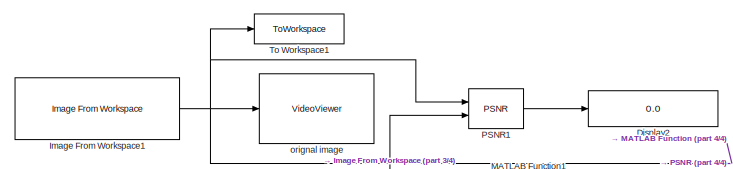
[diagram: root canvas - part 1/4, top center region]
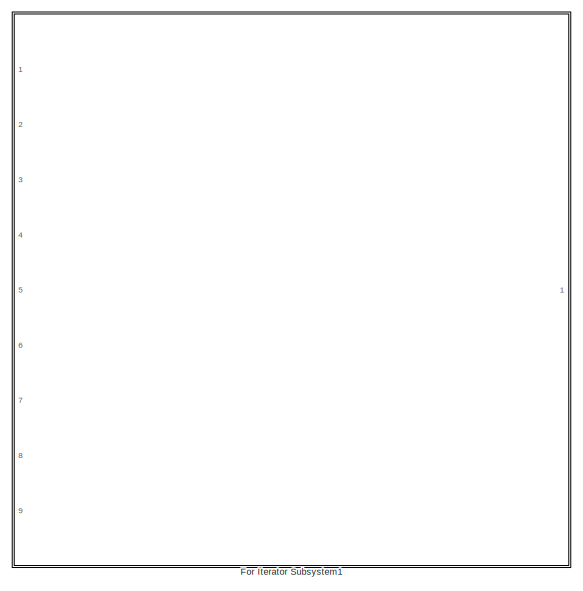
[diagram: root canvas - part 2/4, middle left region]
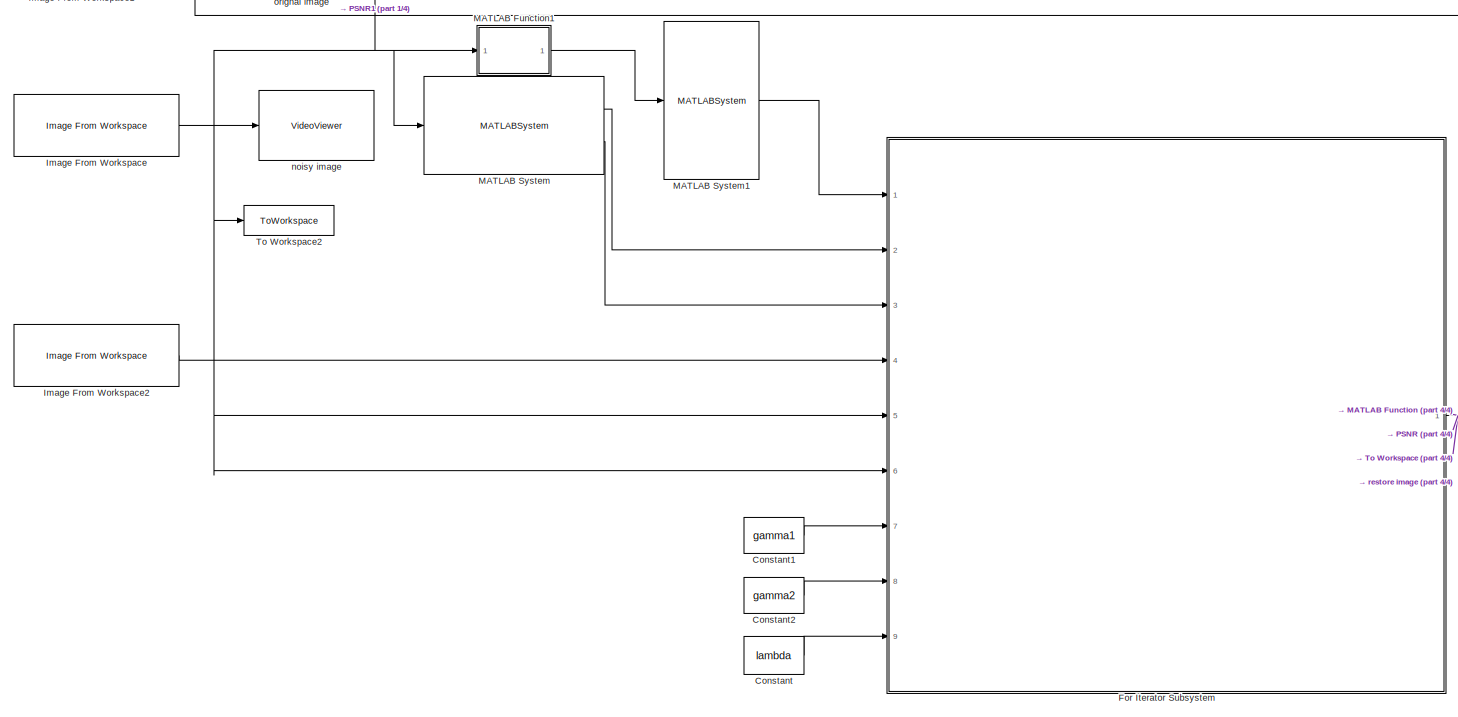
[diagram: root canvas - part 3/4, center side, full height]
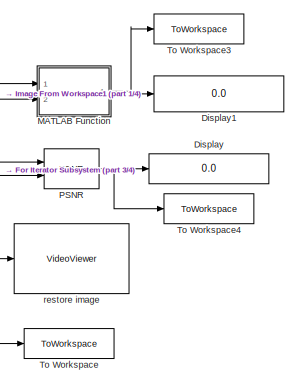
[diagram: root canvas - part 4/4, bottom right region]
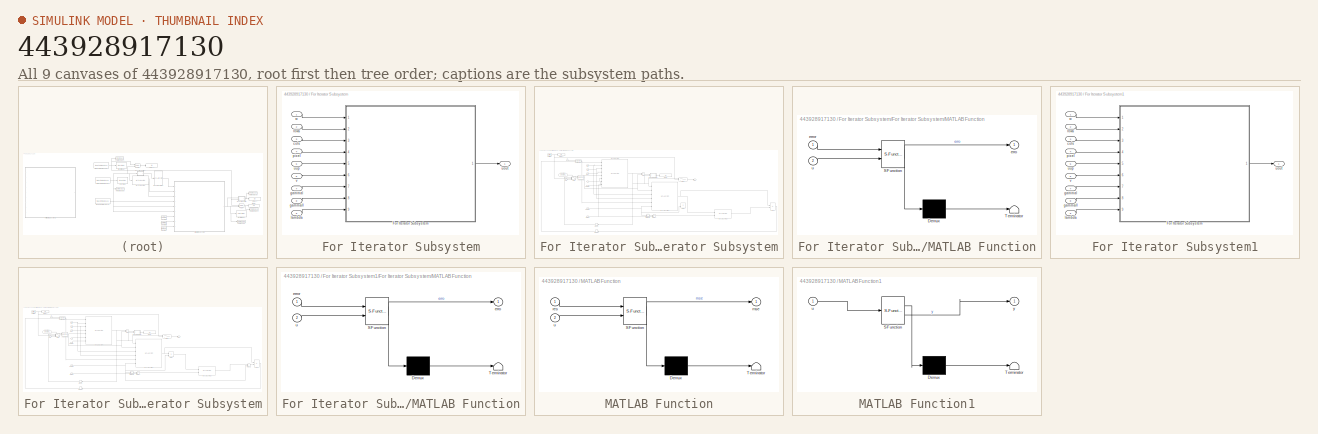
[diagram: thumbnail index - all 9 canvases of the model, root first then tree order]
MODEL slx_443928917130
KIND model
CONFIG AbsTol = auto
CONFIG EnableMultiTasking = off
CONFIG FixedStep = auto
CONFIG MaxStep = auto
CONFIG MinStep = auto
CONFIG RelTol = 1e-3
CONFIG SampleTimeConstraint = Unconstrained
CONFIG SolverName = VariableStepAuto
CONFIG StartTime = 0.0
CONFIG StopTime = 0
BLOCK [Constant] Constant
  Value = lambda
BLOCK [Constant] Constant1
  Value = gamma1
BLOCK [Constant] Constant2
  Value = gamma2
BLOCK [Display] Display
  Decimation = 1
  Format = long
  Ports = [1]
BLOCK [Display] Display1
  Decimation = 1
  Format = long
  Ports = [1]
BLOCK [Display] Display2
  Decimation = 1
  Format = long
  Ports = [1]
BLOCK [SubSystem] For Iterator Subsystem
  Ports = [9, 1]
  RequestExecContextInheritance = off
  TreatAsAtomicUnit = on
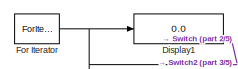
[diagram: For Iterator Subsystem/For Iterator Subsystem - part 1/5, top left region]
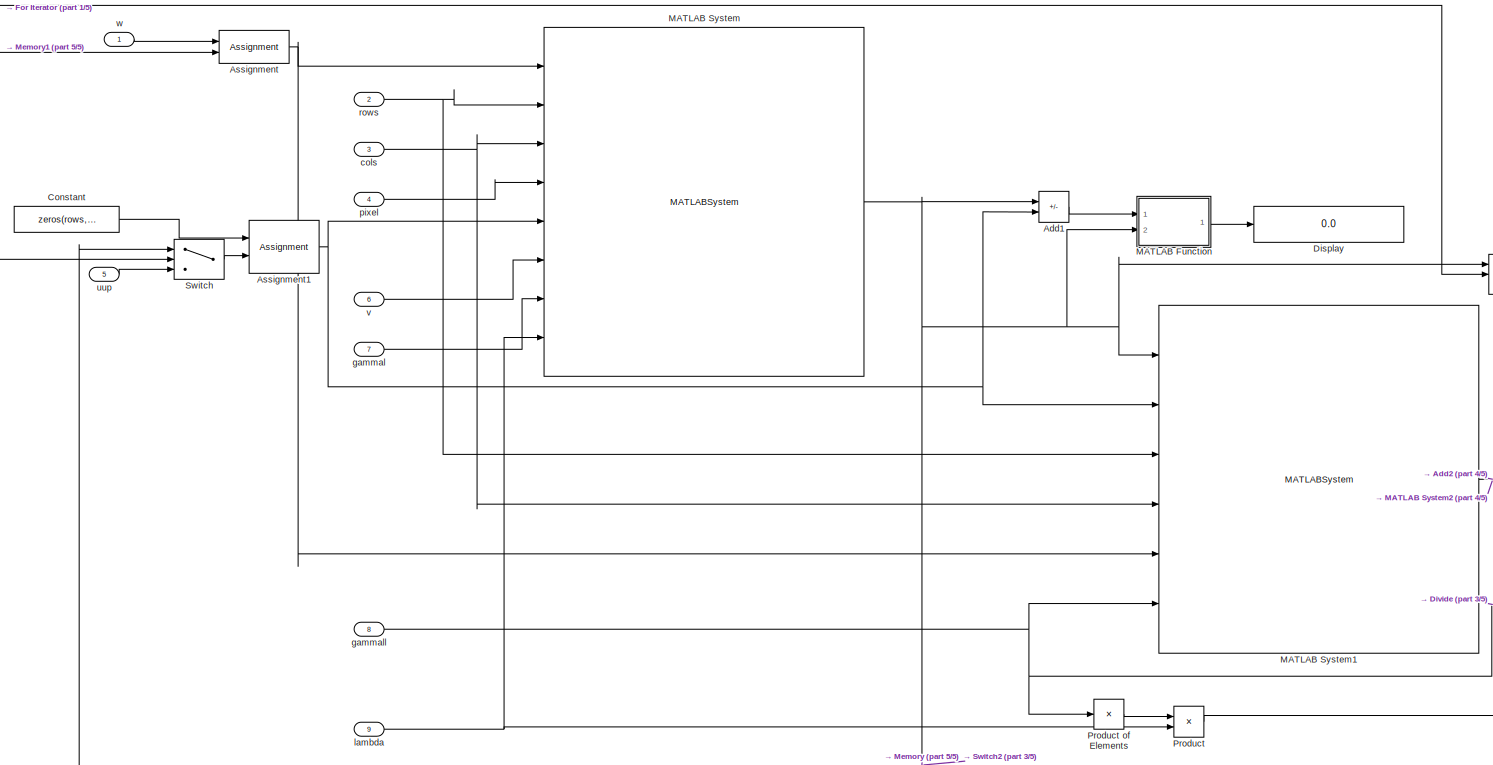
[diagram: For Iterator Subsystem/For Iterator Subsystem - part 2/5, left side, full height]
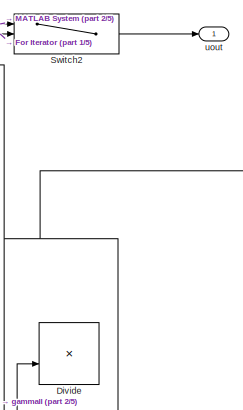
[diagram: For Iterator Subsystem/For Iterator Subsystem - part 3/5, central region]
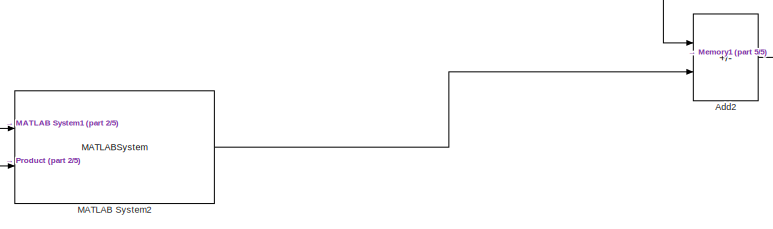
[diagram: For Iterator Subsystem/For Iterator Subsystem - part 4/5, bottom right region]
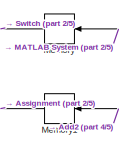
[diagram: For Iterator Subsystem/For Iterator Subsystem - part 5/5, bottom left region]
BLOCK [SubSystem] For Iterator Subsystem/For Iterator Subsystem
  Ports = [9, 1]
  RequestExecContextInheritance = off
  TreatAsAtomicUnit = on
BLOCK [Sum] For Iterator Subsystem/For Iterator Subsystem/Add1
  IconShape = rectangular
  Inputs = +-
  Ports = [2, 1]
BLOCK [Sum] For Iterator Subsystem/For Iterator Subsystem/Add2
  IconShape = rectangular
  Inputs = +-
  Ports = [2, 1]
BLOCK [Assignment] For Iterator Subsystem/For Iterator Subsystem/Assignment
  DiagnosticForDimensions = Warning
  IndexOptions = Assign all,Assign all,Assign all
  Indices = 1,1,1
  NumberOfDimensions = 3
  OutputSizes = 1,1,1
  Ports = [2, 1]
BLOCK [Assignment] For Iterator Subsystem/For Iterator Subsystem/Assignment1
  DiagnosticForDimensions = Warning
  IndexOptions = Assign all,Assign all
  Indices = 1,1
  NumberOfDimensions = 2
  OutputSizes = 1,1
  Ports = [2, 1]
BLOCK [Constant] For Iterator Subsystem/For Iterator Subsystem/Constant
  Value = zeros(rows,cols)
BLOCK [Display] For Iterator Subsystem/For Iterator Subsystem/Display
  Decimation = 1
  Ports = [1]
BLOCK [Display] For Iterator Subsystem/For Iterator Subsystem/Display1
  Decimation = 1
  Ports = [1]
BLOCK [Product] For Iterator Subsystem/For Iterator Subsystem/Divide
  Commented = on
  Inputs = */
  Ports = [2, 1]
BLOCK [ForIterator] For Iterator Subsystem/For Iterator Subsystem/For Iterator
  IndexMode = Zero-based
  IterationLimit = maxIter
  IterationVariableDataType = double
  Ports = [0, 1]
BLOCK [SubSystem] For Iterator Subsystem/For Iterator Subsystem/MATLAB Function
  ErrorFcn = Stateflow.Translate.translate
  PermitHierarchicalResolution = ExplicitOnly
  Ports = [2, 1]
  RequestExecContextInheritance = off
  SFBlockType = MATLAB Function
  TreatAsAtomicUnit = on
BLOCK [Demux] For Iterator Subsystem/For Iterator Subsystem/MATLAB Function/ Demux 
  Outputs = 1
  Ports = [1, 1]
BLOCK [S-Function] For Iterator Subsystem/For Iterator Subsystem/MATLAB Function/ SFunction 
  EnableBusSupport = on
  FunctionName = sf_sfun
  PortCounts = [2 2]
  Ports = [2, 2]
  SFcnIsStateOwnerBlock = off
  SFunctionDeploymentMode = off
  Tag = Stateflow S-Function 3
BLOCK [Terminator] For Iterator Subsystem/For Iterator Subsystem/MATLAB Function/ Terminator 
BLOCK [Outport] For Iterator Subsystem/For Iterator Subsystem/MATLAB Function/erro
BLOCK [Inport] For Iterator Subsystem/For Iterator Subsystem/MATLAB Function/error
BLOCK [Inport] For Iterator Subsystem/For Iterator Subsystem/MATLAB Function/u
  Port = 2
BLOCK [MATLABSystem] For Iterator Subsystem/For Iterator Subsystem/MATLAB System
  MaskDisplay = disp('updateuSystem');\nport_label('input',1,'w');\nport_label('input',2,'rows');\nport_label('input',3,'cols');\nport_label('input',4,'pixel');\nport_label('input',5,'uup');\nport_label('input',6,'v');\nport_label('input',7,'gamma1');\nport_label('input',8,'lambda');\nport_label('output',1,'u');
  MaskType = updateuSystem
  Ports = [8, 1]
  SimulateUsing = Code generation
  System = updateuSystem
BLOCK [MATLABSystem] For Iterator Subsystem/For Iterator Subsystem/MATLAB System1
  MaskDisplay = disp('updatewSystem');\nport_label('input',1,'u');\nport_label('input',2,'upre');\nport_label('input',3,'rows');\nport_label('input',4,'cols');\nport_label('input',5,'w');\nport_label('input',6,'gamma2');\nport_label('output',1,'w_tilde');
  MaskType = updatewSystem
  Ports = [6, 1]
  SimulateUsing = Code generation
  System = updatewSystem
BLOCK [MATLABSystem] For Iterator Subsystem/For Iterator Subsystem/MATLAB System2
  MaskDisplay = disp('SoftThrSystem');\nport_label('input',1,'x');\nport_label('input',2,'lambda');\nport_label('output',1,'y');
  MaskType = SoftThrSystem
  Ports = [2, 1]
  SimulateUsing = Code generation
  System = SoftThrSystem
BLOCK [Memory] For Iterator Subsystem/For Iterator Subsystem/Memory
  InheritSampleTime = on
BLOCK [Memory] For Iterator Subsystem/For Iterator Subsystem/Memory1
  InheritSampleTime = on
BLOCK [Product] For Iterator Subsystem/For Iterator Subsystem/Product
  Ports = [2, 1]
BLOCK [Product] For Iterator Subsystem/For Iterator Subsystem/Product of Elements
  Inputs = /
  Ports = [1, 1]
BLOCK [Switch] For Iterator Subsystem/For Iterator Subsystem/Switch
  Criteria = u2 > Threshold
  InputSameDT = off
  SaturateOnIntegerOverflow = off
BLOCK [Switch] For Iterator Subsystem/For Iterator Subsystem/Switch2
  InputSameDT = off
  SaturateOnIntegerOverflow = off
  Threshold = maxIter-1
BLOCK [Inport] For Iterator Subsystem/For Iterator Subsystem/cols
  Port = 3
BLOCK [Inport] For Iterator Subsystem/For Iterator Subsystem/gammal
  Port = 7
BLOCK [Inport] For Iterator Subsystem/For Iterator Subsystem/gammall
  Port = 8
BLOCK [Inport] For Iterator Subsystem/For Iterator Subsystem/lambda
  Port = 9
BLOCK [Inport] For Iterator Subsystem/For Iterator Subsystem/pixel
  Port = 4
BLOCK [Inport] For Iterator Subsystem/For Iterator Subsystem/rows
  Port = 2
BLOCK [Outport] For Iterator Subsystem/For Iterator Subsystem/uout
BLOCK [Inport] For Iterator Subsystem/For Iterator Subsystem/uup
  Port = 5
BLOCK [Inport] For Iterator Subsystem/For Iterator Subsystem/v
  Port = 6
BLOCK [Inport] For Iterator Subsystem/For Iterator Subsystem/w
BLOCK [Inport] For Iterator Subsystem/cols
  Port = 3
BLOCK [Inport] For Iterator Subsystem/gammal
  Port = 7
BLOCK [Inport] For Iterator Subsystem/gammall
  Port = 8
BLOCK [Inport] For Iterator Subsystem/lambda
  Port = 9
BLOCK [Inport] For Iterator Subsystem/pixel
  Port = 4
BLOCK [Inport] For Iterator Subsystem/rows
  Port = 2
BLOCK [Outport] For Iterator Subsystem/uout
BLOCK [Inport] For Iterator Subsystem/uup
  Port = 5
BLOCK [Inport] For Iterator Subsystem/v
  Port = 6
BLOCK [Inport] For Iterator Subsystem/w
BLOCK [SubSystem] For Iterator Subsystem1
  Commented = on
  Ports = [9, 1]
  RequestExecContextInheritance = off
  TreatAsAtomicUnit = on
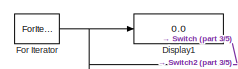
[diagram: For Iterator Subsystem1/For Iterator Subsystem - part 1/5, top left region]
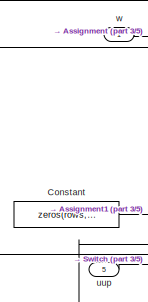
[diagram: For Iterator Subsystem1/For Iterator Subsystem - part 2/5, top left region]
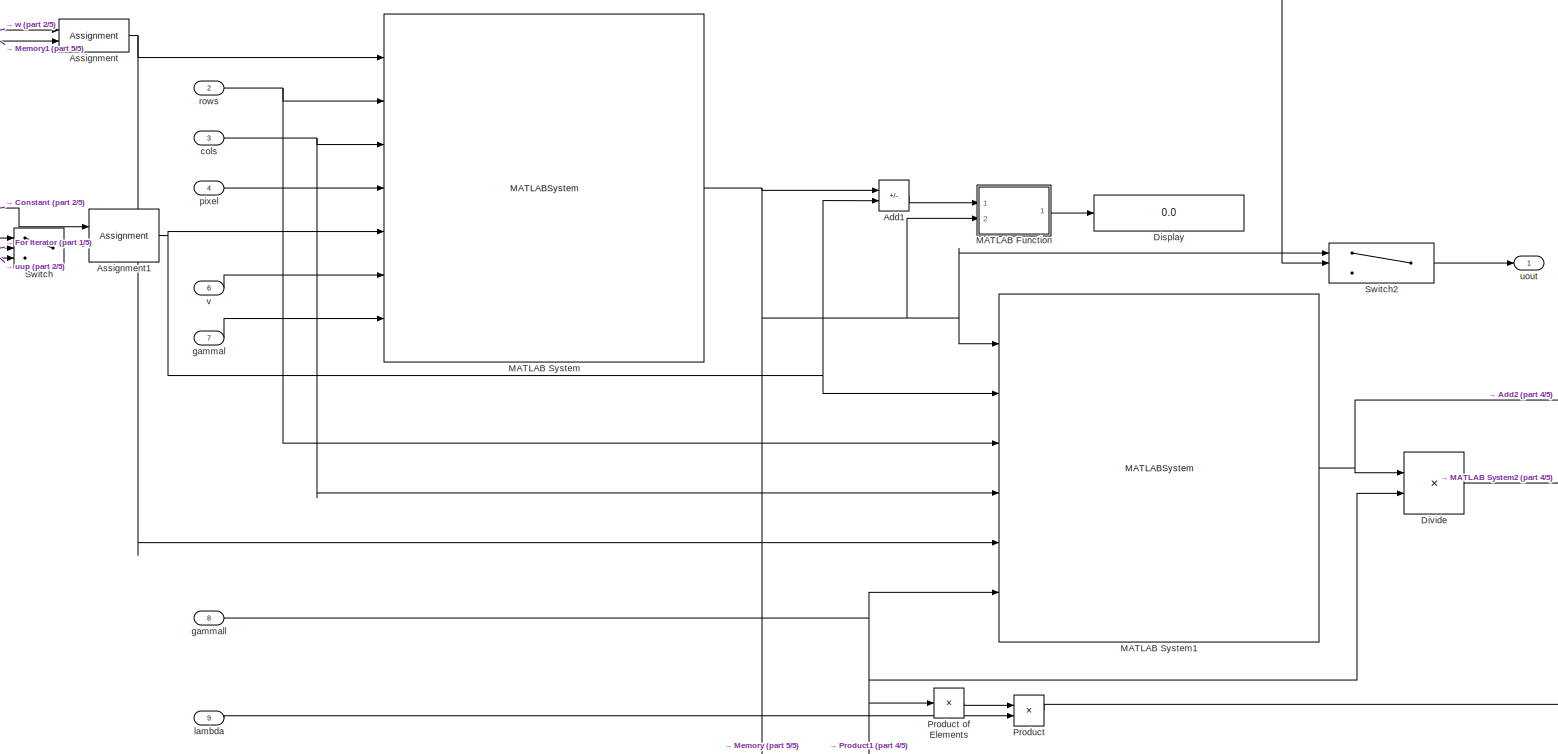
[diagram: For Iterator Subsystem1/For Iterator Subsystem - part 3/5, central region]
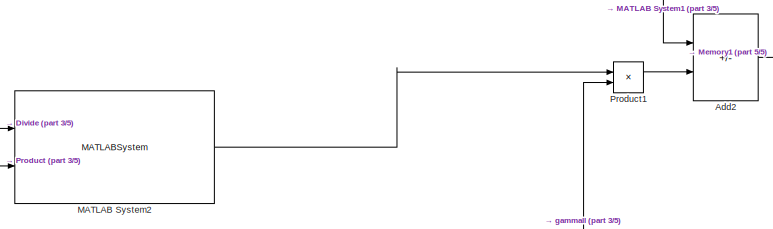
[diagram: For Iterator Subsystem1/For Iterator Subsystem - part 4/5, bottom right region]
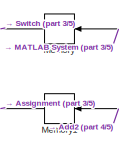
[diagram: For Iterator Subsystem1/For Iterator Subsystem - part 5/5, bottom left region]
BLOCK [SubSystem] For Iterator Subsystem1/For Iterator Subsystem
  Ports = [9, 1]
  RequestExecContextInheritance = off
  TreatAsAtomicUnit = on
BLOCK [Sum] For Iterator Subsystem1/For Iterator Subsystem/Add1
  IconShape = rectangular
  Inputs = +-
  Ports = [2, 1]
BLOCK [Sum] For Iterator Subsystem1/For Iterator Subsystem/Add2
  IconShape = rectangular
  Inputs = +-
  Ports = [2, 1]
BLOCK [Assignment] For Iterator Subsystem1/For Iterator Subsystem/Assignment
  DiagnosticForDimensions = Warning
  IndexOptions = Assign all,Assign all,Assign all
  Indices = 1,1,1
  NumberOfDimensions = 3
  OutputSizes = 1,1,1
  Ports = [2, 1]
BLOCK [Assignment] For Iterator Subsystem1/For Iterator Subsystem/Assignment1
  DiagnosticForDimensions = Warning
  IndexOptions = Assign all,Assign all
  Indices = 1,1
  NumberOfDimensions = 2
  OutputSizes = 1,1
  Ports = [2, 1]
BLOCK [Constant] For Iterator Subsystem1/For Iterator Subsystem/Constant
  Value = zeros(rows,cols)
BLOCK [Display] For Iterator Subsystem1/For Iterator Subsystem/Display
  Decimation = 1
  Ports = [1]
BLOCK [Display] For Iterator Subsystem1/For Iterator Subsystem/Display1
  Decimation = 1
  Ports = [1]
BLOCK [Product] For Iterator Subsystem1/For Iterator Subsystem/Divide
  Inputs = */
  Ports = [2, 1]
BLOCK [ForIterator] For Iterator Subsystem1/For Iterator Subsystem/For Iterator
  IndexMode = Zero-based
  IterationLimit = maxIter
  IterationVariableDataType = double
  Ports = [0, 1]
BLOCK [SubSystem] For Iterator Subsystem1/For Iterator Subsystem/MATLAB Function
  ErrorFcn = Stateflow.Translate.translate
  PermitHierarchicalResolution = ExplicitOnly
  Ports = [2, 1]
  RequestExecContextInheritance = off
  SFBlockType = MATLAB Function
  TreatAsAtomicUnit = on
BLOCK [Demux] For Iterator Subsystem1/For Iterator Subsystem/MATLAB Function/ Demux 
  Outputs = 1
  Ports = [1, 1]
BLOCK [S-Function] For Iterator Subsystem1/For Iterator Subsystem/MATLAB Function/ SFunction 
  EnableBusSupport = on
  FunctionName = sf_sfun
  PortCounts = [2 2]
  Ports = [2, 2]
  SFcnIsStateOwnerBlock = off
  SFunctionDeploymentMode = off
  Tag = Stateflow S-Function 2
BLOCK [Terminator] For Iterator Subsystem1/For Iterator Subsystem/MATLAB Function/ Terminator 
BLOCK [Outport] For Iterator Subsystem1/For Iterator Subsystem/MATLAB Function/erro
BLOCK [Inport] For Iterator Subsystem1/For Iterator Subsystem/MATLAB Function/error
BLOCK [Inport] For Iterator Subsystem1/For Iterator Subsystem/MATLAB Function/u
  Port = 2
BLOCK [MATLABSystem] For Iterator Subsystem1/For Iterator Subsystem/MATLAB System
  MaskDisplay = disp('updateuSystem');\nport_label('input',1,'w');\nport_label('input',2,'rows');\nport_label('input',3,'cols');\nport_label('input',4,'pixel');\nport_label('input',5,'uup');\nport_label('input',6,'v');\nport_label('input',7,'gamma1');\nport_label('output',1,'u');
  MaskType = updateuSystem
  Ports = [7, 1]
  SimulateUsing = Code generation
  System = updateuSystem
BLOCK [MATLABSystem] For Iterator Subsystem1/For Iterator Subsystem/MATLAB System1
  MaskDisplay = disp('updatewSystem');\nport_label('input',1,'u');\nport_label('input',2,'upre');\nport_label('input',3,'rows');\nport_label('input',4,'cols');\nport_label('input',5,'w');\nport_label('input',6,'gamma2');\nport_label('output',1,'w_tilde');
  MaskType = updatewSystem
  Ports = [6, 1]
  SimulateUsing = Code generation
  System = updatewSystem
BLOCK [MATLABSystem] For Iterator Subsystem1/For Iterator Subsystem/MATLAB System2
  MaskDisplay = disp('SoftThrSystem');\nport_label('input',1,'x');\nport_label('input',2,'lambda');\nport_label('output',1,'y');
  MaskType = SoftThrSystem
  Ports = [2, 1]
  SimulateUsing = Code generation
  System = SoftThrSystem
BLOCK [Memory] For Iterator Subsystem1/For Iterator Subsystem/Memory
  InheritSampleTime = on
BLOCK [Memory] For Iterator Subsystem1/For Iterator Subsystem/Memory1
  InheritSampleTime = on
BLOCK [Product] For Iterator Subsystem1/For Iterator Subsystem/Product
  Ports = [2, 1]
BLOCK [Product] For Iterator Subsystem1/For Iterator Subsystem/Product of Elements
  Inputs = /
  Ports = [1, 1]
BLOCK [Product] For Iterator Subsystem1/For Iterator Subsystem/Product1
  Ports = [2, 1]
BLOCK [Switch] For Iterator Subsystem1/For Iterator Subsystem/Switch
  Criteria = u2 > Threshold
  InputSameDT = off
  SaturateOnIntegerOverflow = off
BLOCK [Switch] For Iterator Subsystem1/For Iterator Subsystem/Switch2
  InputSameDT = off
  SaturateOnIntegerOverflow = off
  Threshold = maxIter-1
BLOCK [Inport] For Iterator Subsystem1/For Iterator Subsystem/cols
  Port = 3
BLOCK [Inport] For Iterator Subsystem1/For Iterator Subsystem/gammal
  Port = 7
BLOCK [Inport] For Iterator Subsystem1/For Iterator Subsystem/gammall
  Port = 8
BLOCK [Inport] For Iterator Subsystem1/For Iterator Subsystem/lambda
  Port = 9
BLOCK [Inport] For Iterator Subsystem1/For Iterator Subsystem/pixel
  Port = 4
BLOCK [Inport] For Iterator Subsystem1/For Iterator Subsystem/rows
  Port = 2
BLOCK [Outport] For Iterator Subsystem1/For Iterator Subsystem/uout
BLOCK [Inport] For Iterator Subsystem1/For Iterator Subsystem/uup
  Port = 5
BLOCK [Inport] For Iterator Subsystem1/For Iterator Subsystem/v
  Port = 6
BLOCK [Inport] For Iterator Subsystem1/For Iterator Subsystem/w
BLOCK [Inport] For Iterator Subsystem1/cols
  Port = 3
BLOCK [Inport] For Iterator Subsystem1/gammal
  Port = 7
BLOCK [Inport] For Iterator Subsystem1/gammall
  Port = 8
BLOCK [Inport] For Iterator Subsystem1/lambda
  Port = 9
BLOCK [Inport] For Iterator Subsystem1/pixel
  Port = 4
BLOCK [Inport] For Iterator Subsystem1/rows
  Port = 2
BLOCK [Outport] For Iterator Subsystem1/uout
BLOCK [Inport] For Iterator Subsystem1/uup
  Port = 5
BLOCK [Inport] For Iterator Subsystem1/v
  Port = 6
BLOCK [Inport] For Iterator Subsystem1/w
BLOCK [Reference] Image From Workspace  REF=visionsources/Image From Workspace
  Ports = [0, 1]
  SourceBlock = visionsources/Image From Workspace
  SourceProductBaseCode = VP
  SourceType = Image From Workspace
  Tag = vipblks_nd
BLOCK [Reference] Image From Workspace1  REF=visionsources/Image From Workspace
  Ports = [0, 1]
  SourceBlock = visionsources/Image From Workspace
  SourceProductBaseCode = VP
  SourceType = Image From Workspace
  Tag = vipblks_nd
BLOCK [Reference] Image From Workspace2  REF=visionsources/Image From Workspace
  Ports = [0, 1]
  SourceBlock = visionsources/Image From Workspace
  SourceProductBaseCode = VP
  SourceType = Image From Workspace
  Tag = vipblks_nd
BLOCK [SubSystem] MATLAB Function
  ErrorFcn = Stateflow.Translate.translate
  PermitHierarchicalResolution = ExplicitOnly
  Ports = [2, 1]
  RequestExecContextInheritance = off
  SFBlockType = MATLAB Function
  TreatAsAtomicUnit = on
BLOCK [Demux] MATLAB Function/ Demux 
  Outputs = 1
  Ports = [1, 1]
BLOCK [S-Function] MATLAB Function/ SFunction 
  EnableBusSupport = on
  FunctionName = sf_sfun
  PortCounts = [2 2]
  Ports = [2, 2]
  SFcnIsStateOwnerBlock = off
  SFunctionDeploymentMode = off
  Tag = Stateflow S-Function 5
BLOCK [Terminator] MATLAB Function/ Terminator 
BLOCK [Outport] MATLAB Function/mse
BLOCK [Inport] MATLAB Function/res
BLOCK [Inport] MATLAB Function/u
  Port = 2
BLOCK [SubSystem] MATLAB Function1
  ErrorFcn = Stateflow.Translate.translate
  PermitHierarchicalResolution = ExplicitOnly
  Ports = [1, 1]
  RequestExecContextInheritance = off
  SFBlockType = MATLAB Function
  TreatAsAtomicUnit = on
BLOCK [Demux] MATLAB Function1/ Demux 
  Outputs = 1
  Ports = [1, 1]
BLOCK [S-Function] MATLAB Function1/ SFunction 
  EnableBusSupport = on
  FunctionName = sf_sfun
  PortCounts = [1 2]
  Ports = [1, 2]
  SFcnIsStateOwnerBlock = off
  SFunctionDeploymentMode = off
  Tag = Stateflow S-Function 1
BLOCK [Terminator] MATLAB Function1/ Terminator 
BLOCK [Inport] MATLAB Function1/u
BLOCK [Outport] MATLAB Function1/y
BLOCK [MATLABSystem] MATLAB System
  MaskDisplay = disp('regObsevationSystem');\nport_label('input',1,'imnoisy');\nport_label('output',1,'rows');\nport_label('output',2,'colw');
  MaskType = regObsevationSystem
  Ports = [1, 2]
  SimulateUsing = Code generation
  System = regObsevationSystem
BLOCK [MATLABSystem] MATLAB System1
  MaskDisplay = disp('D');\nport_label('input',1,'z');\nport_label('output',1,'w');
  MaskType = dBlockSystem
  Ports = [1, 1]
  SimulateUsing = Code generation
  System = dBlockSystem
BLOCK [Reference] PSNR  REF=visionstatistics/PSNR
  Ports = [2, 1]
  SourceBlock = visionstatistics/PSNR
  SourceProductBaseCode = VP
  SourceType = PSNR
BLOCK [Reference] PSNR1  REF=visionstatistics/PSNR
  Ports = [2, 1]
  SourceBlock = visionstatistics/PSNR
  SourceProductBaseCode = VP
  SourceType = PSNR
BLOCK [ToWorkspace] To Workspace
  FixptAsFi = on
  MaxDataPoints = inf
  Ports = [1]
  SampleTime = -1
  Save2DSignal = 2-D array (concatenate along first dimension)
  SaveFormat = Structure
  VariableName = tv_restored
BLOCK [ToWorkspace] To Workspace1
  FixptAsFi = on
  MaxDataPoints = inf
  Ports = [1]
  SampleTime = -1
  Save2DSignal = 2-D array (concatenate along first dimension)
  SaveFormat = Structure
  VariableName = orgImg
BLOCK [ToWorkspace] To Workspace2
  FixptAsFi = on
  MaxDataPoints = inf
  Ports = [1]
  SampleTime = -1
  Save2DSignal = 2-D array (concatenate along first dimension)
  SaveFormat = Structure
  VariableName = noisy
BLOCK [ToWorkspace] To Workspace3
  FixptAsFi = on
  MaxDataPoints = inf
  Ports = [1]
  SampleTime = -1
  Save2DSignal = 2-D array (concatenate along first dimension)
  SaveFormat = Structure
  VariableName = mse
BLOCK [ToWorkspace] To Workspace4
  FixptAsFi = on
  MaxDataPoints = inf
  Ports = [1]
  SampleTime = -1
  Save2DSignal = 2-D array (concatenate along first dimension)
  SaveFormat = Structure
  VariableName = PSNR
BLOCK [VideoViewer] noisy image
  Commented = on
  FigPos = [211 982 368 339]
  Ports = [1]
  ScopeSpecificationString = vipscopes.VideoViewerScopeCfg('CurrentConfiguration', extmgr.ConfigurationSet(extmgr.Configuration('Core','General UI',true),extmgr.Configuration('Core','Source UI',true),extmgr.Configuration('Sources','WiredSimulink',true),extmgr.Configuration('Visuals','Video',true),extmgr.Configuration('Tools','Image Navigation Tools',true),extmgr.Configuration('Tools','Image Tool',true),extmgr.Configuration('T...<+100ch>
BLOCK [VideoViewer] orignal image
  Commented = on
  FigPos = [20 546 468 269]
  Ports = [1]
  ScopeSpecificationString = vipscopes.VideoViewerScopeCfg('CurrentConfiguration', extmgr.ConfigurationSet(extmgr.Configuration('Core','General UI',true),extmgr.Configuration('Core','Source UI',true),extmgr.Configuration('Sources','WiredSimulink',true),extmgr.Configuration('Visuals','Video',true),extmgr.Configuration('Tools','Image Navigation Tools',true),extmgr.Configuration('Tools','Image Tool',true),extmgr.Configuration('T...<+100ch>
BLOCK [VideoViewer] restore image
  Commented = on
  FigPos = [260 843 480 394]
  Ports = [1]
  ScopeSpecificationString = vipscopes.VideoViewerScopeCfg('CurrentConfiguration', extmgr.ConfigurationSet(extmgr.Configuration('Core','General UI',true),extmgr.Configuration('Core','Source UI',true),extmgr.Configuration('Sources','WiredSimulink',true),extmgr.Configuration('Visuals','Video',true),extmgr.Configuration('Tools','Image Navigation Tools',true,'Magnification',1.19344325153374),extmgr.Configuration('Tools','Image To...<+108ch>
  colormapValue = gray(256)
LINE Constant1:1 -> For Iterator Subsystem:7
LINE Constant2:1 -> For Iterator Subsystem:8
LINE Constant:1 -> For Iterator Subsystem:9
LINE For Iterator Subsystem/For Iterator Subsystem/Add1:1 -> For Iterator Subsystem/For Iterator Subsystem/MATLAB Function:1
LINE For Iterator Subsystem/For Iterator Subsystem/Add2:1 -> For Iterator Subsystem/For Iterator Subsystem/Memory1:1
NET For Iterator Subsystem/For Iterator Subsystem/Assignment1:1 -> For Iterator Subsystem/For Iterator Subsystem/Add1:2, For Iterator Subsystem/For Iterator Subsystem/MATLAB System1:2, For Iterator Subsystem/For Iterator Subsystem/MATLAB System:5
NET For Iterator Subsystem/For Iterator Subsystem/Assignment:1 -> For Iterator Subsystem/For Iterator Subsystem/MATLAB System1:5, For Iterator Subsystem/For Iterator Subsystem/MATLAB System:1
LINE For Iterator Subsystem/For Iterator Subsystem/Constant:1 -> For Iterator Subsystem/For Iterator Subsystem/Assignment1:1
NET For Iterator Subsystem/For Iterator Subsystem/For Iterator:1 -> For Iterator Subsystem/For Iterator Subsystem/Display1:1, For Iterator Subsystem/For Iterator Subsystem/Switch2:2, For Iterator Subsystem/For Iterator Subsystem/Switch:2
LINE For Iterator Subsystem/For Iterator Subsystem/MATLAB Function:1 -> For Iterator Subsystem/For Iterator Subsystem/Display:1
NET For Iterator Subsystem/For Iterator Subsystem/MATLAB System1:1 -> For Iterator Subsystem/For Iterator Subsystem/Add2:1, For Iterator Subsystem/For Iterator Subsystem/MATLAB System2:1
LINE For Iterator Subsystem/For Iterator Subsystem/MATLAB System2:1 -> For Iterator Subsystem/For Iterator Subsystem/Add2:2
NET For Iterator Subsystem/For Iterator Subsystem/MATLAB System:1 -> For Iterator Subsystem/For Iterator Subsystem/Add1:1, For Iterator Subsystem/For Iterator Subsystem/MATLAB Function:2, For Iterator Subsystem/For Iterator Subsystem/MATLAB System1:1, For Iterator Subsystem/For Iterator Subsystem/Memory:1, For Iterator Subsystem/For Iterator Subsystem/Switch2:1
LINE For Iterator Subsystem/For Iterator Subsystem/Memory1:1 -> For Iterator Subsystem/For Iterator Subsystem/Assignment:2
LINE For Iterator Subsystem/For Iterator Subsystem/Memory:1 -> For Iterator Subsystem/For Iterator Subsystem/Switch:1
LINE For Iterator Subsystem/For Iterator Subsystem/Product of Elements:1 -> For Iterator Subsystem/For Iterator Subsystem/Product:1
LINE For Iterator Subsystem/For Iterator Subsystem/Product:1 -> For Iterator Subsystem/For Iterator Subsystem/MATLAB System2:2
LINE For Iterator Subsystem/For Iterator Subsystem/Switch2:1 -> For Iterator Subsystem/For Iterator Subsystem/uout:1
LINE For Iterator Subsystem/For Iterator Subsystem/Switch:1 -> For Iterator Subsystem/For Iterator Subsystem/Assignment1:2
NET For Iterator Subsystem/For Iterator Subsystem/cols:1 -> For Iterator Subsystem/For Iterator Subsystem/MATLAB System1:4, For Iterator Subsystem/For Iterator Subsystem/MATLAB System:3
LINE For Iterator Subsystem/For Iterator Subsystem/gammal:1 -> For Iterator Subsystem/For Iterator Subsystem/MATLAB System:7
NET For Iterator Subsystem/For Iterator Subsystem/gammall:1 -> For Iterator Subsystem/For Iterator Subsystem/Divide:2, For Iterator Subsystem/For Iterator Subsystem/MATLAB System1:6, For Iterator Subsystem/For Iterator Subsystem/Product of Elements:1
NET For Iterator Subsystem/For Iterator Subsystem/lambda:1 -> For Iterator Subsystem/For Iterator Subsystem/MATLAB System:8, For Iterator Subsystem/For Iterator Subsystem/Product:2
LINE For Iterator Subsystem/For Iterator Subsystem/pixel:1 -> For Iterator Subsystem/For Iterator Subsystem/MATLAB System:4
NET For Iterator Subsystem/For Iterator Subsystem/rows:1 -> For Iterator Subsystem/For Iterator Subsystem/MATLAB System1:3, For Iterator Subsystem/For Iterator Subsystem/MATLAB System:2
LINE For Iterator Subsystem/For Iterator Subsystem/uup:1 -> For Iterator Subsystem/For Iterator Subsystem/Switch:3
LINE For Iterator Subsystem/For Iterator Subsystem/v:1 -> For Iterator Subsystem/For Iterator Subsystem/MATLAB System:6
LINE For Iterator Subsystem/For Iterator Subsystem/w:1 -> For Iterator Subsystem/For Iterator Subsystem/Assignment:1
LINE For Iterator Subsystem/For Iterator Subsystem:1 -> For Iterator Subsystem/uout:1
LINE For Iterator Subsystem/cols:1 -> For Iterator Subsystem/For Iterator Subsystem:3
LINE For Iterator Subsystem/gammal:1 -> For Iterator Subsystem/For Iterator Subsystem:7
LINE For Iterator Subsystem/gammall:1 -> For Iterator Subsystem/For Iterator Subsystem:8
LINE For Iterator Subsystem/lambda:1 -> For Iterator Subsystem/For Iterator Subsystem:9
LINE For Iterator Subsystem/pixel:1 -> For Iterator Subsystem/For Iterator Subsystem:4
LINE For Iterator Subsystem/rows:1 -> For Iterator Subsystem/For Iterator Subsystem:2
LINE For Iterator Subsystem/uup:1 -> For Iterator Subsystem/For Iterator Subsystem:5
LINE For Iterator Subsystem/v:1 -> For Iterator Subsystem/For Iterator Subsystem:6
LINE For Iterator Subsystem/w:1 -> For Iterator Subsystem/For Iterator Subsystem:1
LINE For Iterator Subsystem1/For Iterator Subsystem/Add1:1 -> For Iterator Subsystem1/For Iterator Subsystem/MATLAB Function:1
LINE For Iterator Subsystem1/For Iterator Subsystem/Add2:1 -> For Iterator Subsystem1/For Iterator Subsystem/Memory1:1
NET For Iterator Subsystem1/For Iterator Subsystem/Assignment1:1 -> For Iterator Subsystem1/For Iterator Subsystem/Add1:2, For Iterator Subsystem1/For Iterator Subsystem/MATLAB System1:2, For Iterator Subsystem1/For Iterator Subsystem/MATLAB System:5
NET For Iterator Subsystem1/For Iterator Subsystem/Assignment:1 -> For Iterator Subsystem1/For Iterator Subsystem/MATLAB System1:5, For Iterator Subsystem1/For Iterator Subsystem/MATLAB System:1
LINE For Iterator Subsystem1/For Iterator Subsystem/Constant:1 -> For Iterator Subsystem1/For Iterator Subsystem/Assignment1:1
LINE For Iterator Subsystem1/For Iterator Subsystem/Divide:1 -> For Iterator Subsystem1/For Iterator Subsystem/MATLAB System2:1
NET For Iterator Subsystem1/For Iterator Subsystem/For Iterator:1 -> For Iterator Subsystem1/For Iterator Subsystem/Display1:1, For Iterator Subsystem1/For Iterator Subsystem/Switch2:2, For Iterator Subsystem1/For Iterator Subsystem/Switch:2
LINE For Iterator Subsystem1/For Iterator Subsystem/MATLAB Function:1 -> For Iterator Subsystem1/For Iterator Subsystem/Display:1
NET For Iterator Subsystem1/For Iterator Subsystem/MATLAB System1:1 -> For Iterator Subsystem1/For Iterator Subsystem/Add2:1, For Iterator Subsystem1/For Iterator Subsystem/Divide:1
LINE For Iterator Subsystem1/For Iterator Subsystem/MATLAB System2:1 -> For Iterator Subsystem1/For Iterator Subsystem/Product1:1
NET For Iterator Subsystem1/For Iterator Subsystem/MATLAB System:1 -> For Iterator Subsystem1/For Iterator Subsystem/Add1:1, For Iterator Subsystem1/For Iterator Subsystem/MATLAB Function:2, For Iterator Subsystem1/For Iterator Subsystem/MATLAB System1:1, For Iterator Subsystem1/For Iterator Subsystem/Memory:1, For Iterator Subsystem1/For Iterator Subsystem/Switch2:1
LINE For Iterator Subsystem1/For Iterator Subsystem/Memory1:1 -> For Iterator Subsystem1/For Iterator Subsystem/Assignment:2
LINE For Iterator Subsystem1/For Iterator Subsystem/Memory:1 -> For Iterator Subsystem1/For Iterator Subsystem/Switch:1
LINE For Iterator Subsystem1/For Iterator Subsystem/Product of Elements:1 -> For Iterator Subsystem1/For Iterator Subsystem/Product:1
LINE For Iterator Subsystem1/For Iterator Subsystem/Product1:1 -> For Iterator Subsystem1/For Iterator Subsystem/Add2:2
LINE For Iterator Subsystem1/For Iterator Subsystem/Product:1 -> For Iterator Subsystem1/For Iterator Subsystem/MATLAB System2:2
LINE For Iterator Subsystem1/For Iterator Subsystem/Switch2:1 -> For Iterator Subsystem1/For Iterator Subsystem/uout:1
LINE For Iterator Subsystem1/For Iterator Subsystem/Switch:1 -> For Iterator Subsystem1/For Iterator Subsystem/Assignment1:2
NET For Iterator Subsystem1/For Iterator Subsystem/cols:1 -> For Iterator Subsystem1/For Iterator Subsystem/MATLAB System1:4, For Iterator Subsystem1/For Iterator Subsystem/MATLAB System:3
LINE For Iterator Subsystem1/For Iterator Subsystem/gammal:1 -> For Iterator Subsystem1/For Iterator Subsystem/MATLAB System:7
NET For Iterator Subsystem1/For Iterator Subsystem/gammall:1 -> For Iterator Subsystem1/For Iterator Subsystem/Divide:2, For Iterator Subsystem1/For Iterator Subsystem/MATLAB System1:6, For Iterator Subsystem1/For Iterator Subsystem/Product of Elements:1, For Iterator Subsystem1/For Iterator Subsystem/Product1:2
LINE For Iterator Subsystem1/For Iterator Subsystem/lambda:1 -> For Iterator Subsystem1/For Iterator Subsystem/Product:2
LINE For Iterator Subsystem1/For Iterator Subsystem/pixel:1 -> For Iterator Subsystem1/For Iterator Subsystem/MATLAB System:4
NET For Iterator Subsystem1/For Iterator Subsystem/rows:1 -> For Iterator Subsystem1/For Iterator Subsystem/MATLAB System1:3, For Iterator Subsystem1/For Iterator Subsystem/MATLAB System:2
LINE For Iterator Subsystem1/For Iterator Subsystem/uup:1 -> For Iterator Subsystem1/For Iterator Subsystem/Switch:3
LINE For Iterator Subsystem1/For Iterator Subsystem/v:1 -> For Iterator Subsystem1/For Iterator Subsystem/MATLAB System:6
LINE For Iterator Subsystem1/For Iterator Subsystem/w:1 -> For Iterator Subsystem1/For Iterator Subsystem/Assignment:1
LINE For Iterator Subsystem1/For Iterator Subsystem:1 -> For Iterator Subsystem1/uout:1
LINE For Iterator Subsystem1/cols:1 -> For Iterator Subsystem1/For Iterator Subsystem:3
LINE For Iterator Subsystem1/gammal:1 -> For Iterator Subsystem1/For Iterator Subsystem:7
LINE For Iterator Subsystem1/gammall:1 -> For Iterator Subsystem1/For Iterator Subsystem:8
LINE For Iterator Subsystem1/lambda:1 -> For Iterator Subsystem1/For Iterator Subsystem:9
LINE For Iterator Subsystem1/pixel:1 -> For Iterator Subsystem1/For Iterator Subsystem:4
LINE For Iterator Subsystem1/rows:1 -> For Iterator Subsystem1/For Iterator Subsystem:2
LINE For Iterator Subsystem1/uup:1 -> For Iterator Subsystem1/For Iterator Subsystem:5
LINE For Iterator Subsystem1/v:1 -> For Iterator Subsystem1/For Iterator Subsystem:6
LINE For Iterator Subsystem1/w:1 -> For Iterator Subsystem1/For Iterator Subsystem:1
NET For Iterator Subsystem:1 -> MATLAB Function:1, PSNR:2, To Workspace:1, restore image:1
NET Image From Workspace1:1 -> MATLAB Function:2, PSNR1:1, PSNR:1, To Workspace1:1, orignal image:1
LINE Image From Workspace2:1 -> For Iterator Subsystem:4
NET Image From Workspace:1 -> For Iterator Subsystem:5, For Iterator Subsystem:6, MATLAB Function1:1, MATLAB System:1, PSNR1:2, To Workspace2:1, noisy image:1
LINE MATLAB Function1:1 -> MATLAB System1:1
NET MATLAB Function:1 -> Display1:1, To Workspace3:1
LINE MATLAB System1:1 -> For Iterator Subsystem:1
LINE MATLAB System:1 -> For Iterator Subsystem:2
LINE MATLAB System:2 -> For Iterator Subsystem:3
LINE PSNR1:1 -> Display2:1
NET PSNR:1 -> Display:1, To Workspace4:1
note: NET lines group one-source signal fan-out (src -> all destinations, sorted); 1:1 wires keep LINE
CHART For Iterator
Subsystem1/For Iterator
Subsystem/MATLAB Function states=1 transitions=1
  STATE_LABEL 'eML_blk_kernel()'
  STATE_LABEL 'SCRIPT:\nfunction erro = fcn(error,u)\n\nerro = norm(error(:),2) / norm(u(:),2);\n'
CHART For Iterator
Subsystem/For Iterator
Subsystem/MATLAB Function states=1 transitions=1
  STATE_LABEL 'eML_blk_kernel()'
  STATE_LABEL 'SCRIPT:\nfunction erro = fcn(error,u)\n\nerro = norm(error(:),2) / norm(u(:),2);\n'
CHART MATLAB Function states=1 transitions=1
  STATE_LABEL 'eML_blk_kernel()'
  STATE_LABEL 'SCRIPT:\nfunction mse = fcn(res,u)\n\nmse = immse(u,res);\n'
CHART MATLAB Function1 states=1 transitions=1
  STATE_LABEL 'eML_blk_kernel()'
  STATE_LABEL 'SCRIPT:\nfunction y = fcn(u)\n\ny = zeros(size(u));\n'
CHART  states=0 transitions=0
CHART  states=0 transitions=0
CHART  states=0 transitions=0
CHART  states=0 transitions=0
